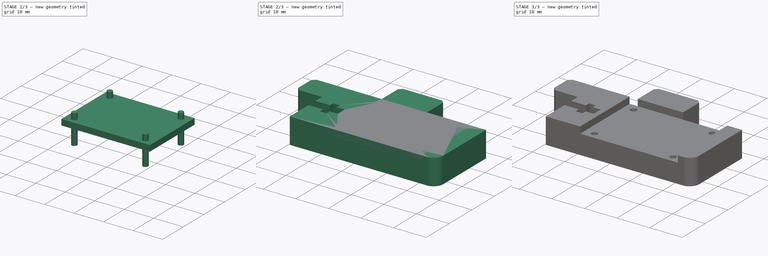
[diagram: build sequence overview — one tinted view per stage of 3, left to right]
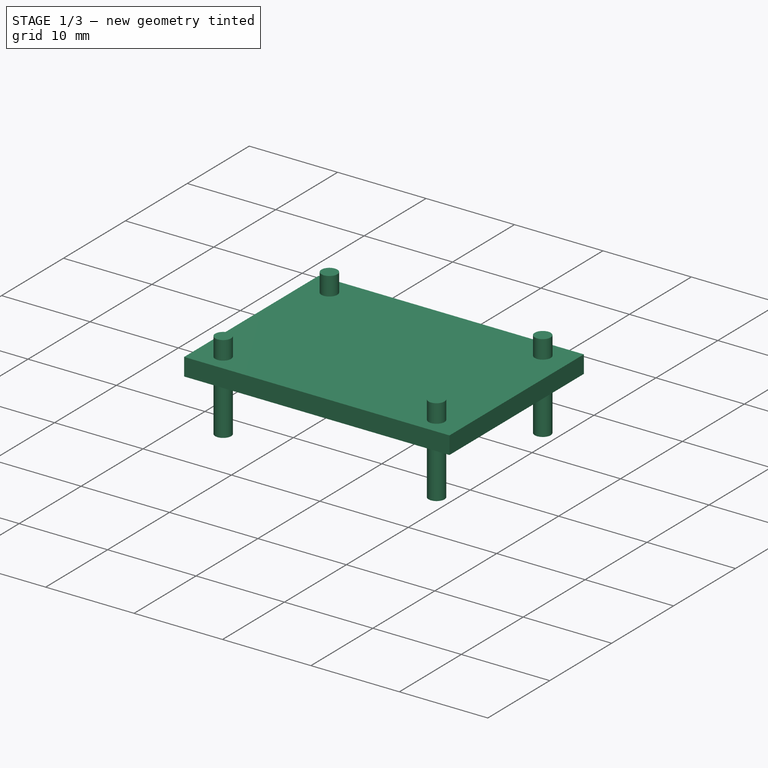
[diagram: stage 1 of 3 — iso view after this stage's code; geometry added in this stage tinted green]
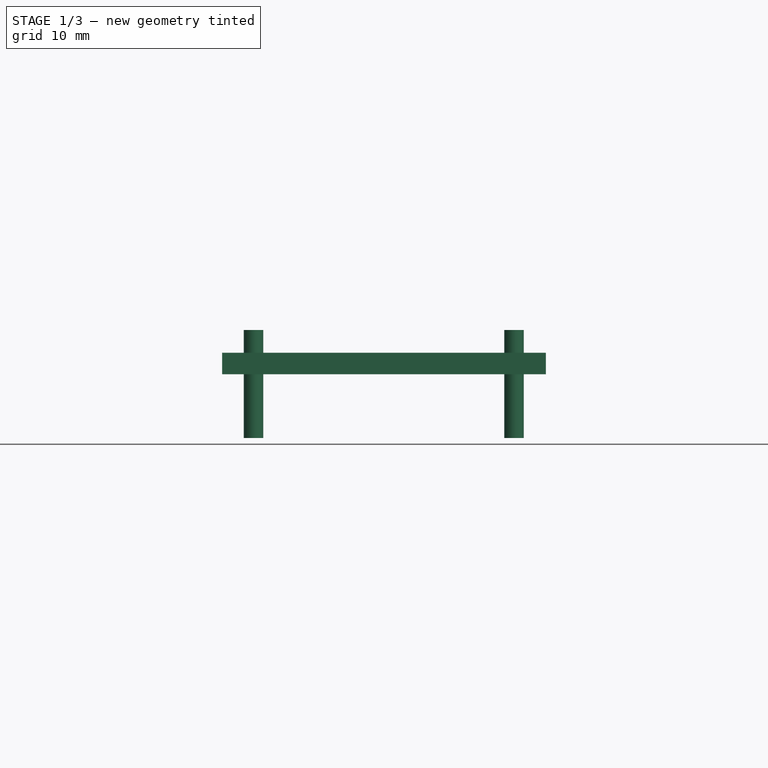
[diagram: stage 1 of 3 — front view after this stage's code; geometry added in this stage tinted green]
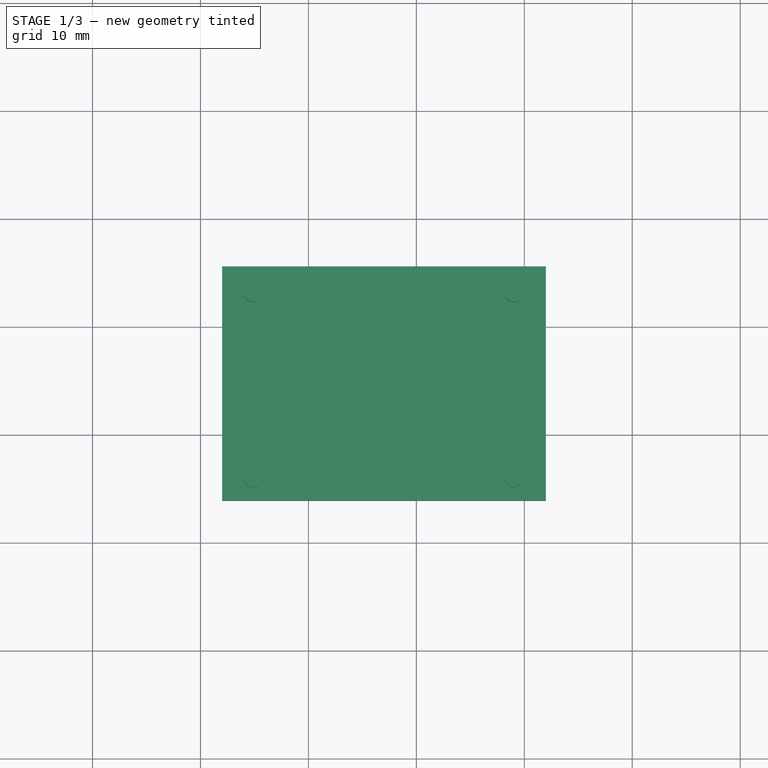
[diagram: stage 1 of 3 — top view after this stage's code; geometry added in this stage tinted green]
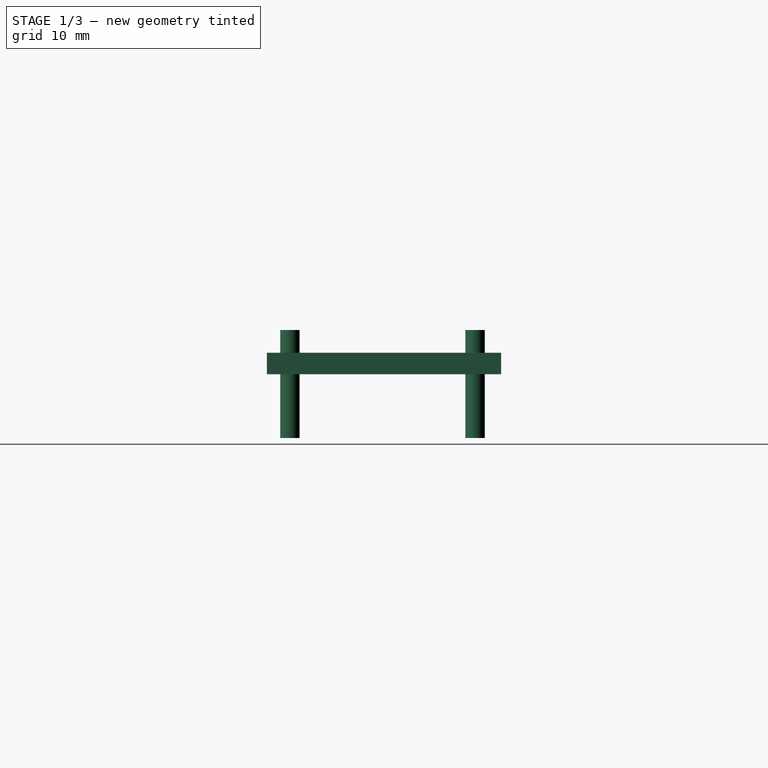
[diagram: stage 1 of 3 — right view after this stage's code; geometry added in this stage tinted green]
FCSTD DOCUMENT  (FreeCAD 0.15R4671 (Git))
Label: i3B1-31 Bracket With IR differential probe holder
License: All rights reserved
LicenseURL: http://en.wikipedia.org/wiki/All_rights_reserved
objects: Sketcher::SketchObject×5, PartDesign::Pad×3, Part::Cut×2, PartDesign::Pocket×1
note: 15 computed .brp shape members not serialized (recipe doc carries the construction recipe); baked Part::Feature solids carry a one-line shape summary decoded from their .brp

FEATURE [Sketcher::SketchObject] Sketch001  label="Holes for PCB"
  sketch-geometry (16):
    g0: LineSegment [constr] StartX=-8 StartY=5.5 StartZ=0 EndX=22 EndY=5.5 EndZ=0
    g1: LineSegment [constr] StartX=22 StartY=5.5 StartZ=0 EndX=22 EndY=-17.5 EndZ=0
    g2: LineSegment [constr] StartX=22 StartY=-17.5 StartZ=0 EndX=-8 EndY=-17.5 EndZ=0
    g3: LineSegment [constr] StartX=-8 StartY=-17.5 StartZ=0 EndX=-8 EndY=5.5 EndZ=0
    g4: Circle CenterX=-5.09 CenterY=3.09 CenterZ=0 NormalX=0 NormalY=0 NormalZ=1 Radius=0.9
    g5: Circle CenterX=19.04 CenterY=3.09 CenterZ=0 NormalX=0 NormalY=0 NormalZ=1 Radius=0.9
    g6: Circle CenterX=19.04 CenterY=-14.06 CenterZ=0 NormalX=0 NormalY=0 NormalZ=1 Radius=0.9
    g7: Circle CenterX=-5.09 CenterY=-14.06 CenterZ=0 NormalX=0 NormalY=0 NormalZ=1 Radius=0.9
    g8: LineSegment [constr] StartX=-5.09 StartY=3.09 StartZ=0 EndX=19.04 EndY=3.09 EndZ=0
    g9: LineSegment [constr] StartX=19.04 StartY=3.09 StartZ=0 EndX=19.04 EndY=-14.06 EndZ=0
    g10: LineSegment [constr] StartX=19.04 StartY=-14.06 StartZ=0 EndX=-5.09 EndY=-14.06 EndZ=0
    g11: LineSegment [constr] StartX=-5.09 StartY=-14.06 StartZ=0 EndX=-5.09 EndY=3.09 EndZ=0
    g12: LineSegment [constr] StartX=-7 StartY=5 StartZ=0 EndX=21.15 EndY=5 EndZ=0
    g13: LineSegment [constr] StartX=21.15 StartY=5 StartZ=0 EndX=21.15 EndY=-16.1 EndZ=0
    g14: LineSegment [constr] StartX=21.15 StartY=-16.1 StartZ=0 EndX=-7 EndY=-16.1 EndZ=0
    g15: LineSegment [constr] StartX=-7 StartY=-16.1 StartZ=0 EndX=-7 EndY=5 EndZ=0
  constraints (44):
    c: Coincident(g0,g1)
    c: Coincident(g1,g2)
    c: Coincident(g2,g3)
    c: Coincident(g3,g0)
    c: Horizontal(g0)
    c: Horizontal(g2)
    c: Vertical(g1)
    c: Vertical(g3)
    c: DistanceX(g0) = 30
    c: DistanceY(g1) = -23
    c: DistanceX(g-1,g0) = -8
    c: DistanceY(g-1,g0) = 5.5
    c: Radius(g4) = 0.9
    c: DistanceX(g4,g0) = -2.91
    c: DistanceY(g4,g0) = 2.41
    c: Equal(g4,g5)
    c: Equal(g4,g6)
    c: Equal(g4,g7)
    c: Coincident(g8,g9)
    c: Coincident(g9,g10)
    c: Coincident(g10,g11)
    c: Coincident(g11,g8)
    c: Horizontal(g8)
    c: Horizontal(g10)
    c: Vertical(g9)
    c: Vertical(g11)
    c: Coincident(g8,g4)
    c: DistanceX(g8) = 24.13
    c: DistanceY(g11) = 17.15
    c: Coincident(g7,g10)
    c: Coincident(g5,g8)
    c: Coincident(g6,g9)
    c: Coincident(g12,g13)
    c: Coincident(g13,g14)
    c: Coincident(g14,g15)
    c: Coincident(g15,g12)
    c: Horizontal(g12)
    c: Horizontal(g14)
    c: Vertical(g13)
    c: Vertical(g15)
    c: DistanceX(g12) = 28.15
    c: DistanceY(g15) = 21.1
    c: DistanceY(g12,g0) = 0.5
    c: DistanceX(g12,g0) = -1
FEATURE [Sketcher::SketchObject] Sketch002  label="Pocket for PCB Placement"
  Placement = pos=(0,0,7.9) rot=(0,0,1;0rad)
  sketch-geometry (4):
    g0: LineSegment StartX=-8 StartY=5.5 StartZ=0 EndX=22 EndY=5.5 EndZ=0
    g1: LineSegment StartX=22 StartY=5.5 StartZ=0 EndX=22 EndY=-16.2 EndZ=0
    g2: LineSegment StartX=-8 StartY=-16.2 StartZ=0 EndX=-8 EndY=5.5 EndZ=0
    g3: LineSegment StartX=22 StartY=-16.2 StartZ=0 EndX=-8 EndY=-16.2 EndZ=0
  constraints (12):
    c: Coincident(g0,g1)
    c: Coincident(g2,g0)
    c: Horizontal(g0)
    c: Vertical(g1)
    c: Vertical(g2)
    c: DistanceX(g0) = 30
    c: DistanceX(g-1,g0) = -8
    c: DistanceY(g-1,g0) = 5.5
    c: Horizontal(g3)
    c: Coincident(g3,g2)
    c: Coincident(g3,g1)
    c: DistanceY(g0,g2) = -21.7
FEATURE [Sketcher::SketchObject] Sketch004  label="Original Contour"
  sketch-geometry (42):
    g0: LineSegment [constr] StartX=0 StartY=0 StartZ=0 EndX=-5.5 EndY=0 EndZ=0
    g1: LineSegment [constr] StartX=-5.5 StartY=0 StartZ=0 EndX=-5.5 EndY=5.5 EndZ=0
    g2: LineSegment StartX=-5.5 StartY=5.5 StartZ=0 EndX=-5.5 EndY=12.56 EndZ=0
    g3: LineSegment StartX=-5.5 StartY=12.56 StartZ=0 EndX=-4.56 EndY=13.5 EndZ=0
    g4: LineSegment StartX=-4.56 StartY=13.5 StartZ=0 EndX=7.44 EndY=13.5 EndZ=0
    g5: LineSegment StartX=7.44 StartY=13.5 StartZ=0 EndX=8.38 EndY=12.56 EndZ=0
    g6: LineSegment StartX=8.38 StartY=12.56 StartZ=0 EndX=8.38 EndY=5.5 EndZ=0
    g7: LineSegment StartX=8.38 StartY=5.5 StartZ=0 EndX=15 EndY=5.5 EndZ=0
    g8: LineSegment StartX=15 StartY=5.5 StartZ=0 EndX=15 EndY=1 EndZ=0
    g9: LineSegment StartX=15 StartY=1 StartZ=0 EndX=13.6 EndY=1 EndZ=0
    g10: LineSegment StartX=13.6 StartY=1 StartZ=0 EndX=13.6 EndY=-1 EndZ=0
    g11: LineSegment StartX=13.6 StartY=-1 StartZ=0 EndX=15 EndY=-1 EndZ=0
    g12: LineSegment StartX=15 StartY=-1 StartZ=0 EndX=15 EndY=-3.5 EndZ=0
    g13: LineSegment StartX=15 StartY=-3.5 StartZ=0 EndX=18 EndY=-3.5 EndZ=0
    g14: LineSegment StartX=18 StartY=-3.5 StartZ=0 EndX=18 EndY=-1 EndZ=0
    g15: LineSegment StartX=18 StartY=-1 StartZ=0 EndX=19.4 EndY=-1 EndZ=0
    g16: LineSegment StartX=19.4 StartY=-1 StartZ=0 EndX=19.4 EndY=1 EndZ=0
    g17: LineSegment StartX=19.4 StartY=1 StartZ=0 EndX=18 EndY=1 EndZ=0
    g18: LineSegment StartX=18 StartY=1 StartZ=0 EndX=18 EndY=5.5 EndZ=0
    g19: LineSegment StartX=18 StartY=5.5 StartZ=0 EndX=26.5 EndY=5.5 EndZ=0
    g20: LineSegment StartX=26.5 StartY=5.5 StartZ=0 EndX=26.5 EndY=-4 EndZ=0
    g21: LineSegment StartX=24 StartY=-7 StartZ=0 EndX=-6.5 EndY=-13 EndZ=0
    g22: LineSegment StartX=-6.5 StartY=-13 StartZ=0 EndX=-18.5 EndY=-13 EndZ=0
    g23: LineSegment StartX=-18.5 StartY=-13 StartZ=0 EndX=-18.5 EndY=-8 EndZ=0
    g24: LineSegment StartX=-18.5 StartY=-8 StartZ=0 EndX=-14 EndY=-8 EndZ=0
    g25: LineSegment StartX=-14 StartY=-8 StartZ=0 EndX=-14 EndY=-9.4 EndZ=0
    g26: LineSegment StartX=-14 StartY=-9.4 StartZ=0 EndX=-12 EndY=-9.4 EndZ=0
    g27: LineSegment StartX=-12 StartY=-9.4 StartZ=0 EndX=-12 EndY=-8 EndZ=0
    g28: LineSegment StartX=-12 StartY=-8 StartZ=0 EndX=-9.5 EndY=-8 EndZ=0
    g29: LineSegment StartX=-9.5 StartY=-8 StartZ=0 EndX=-9.5 EndY=-5 EndZ=0
    g30: LineSegment StartX=-9.5 StartY=-5 StartZ=0 EndX=-12 EndY=-5 EndZ=0
    g31: LineSegment StartX=-12 StartY=-5 StartZ=0 EndX=-12 EndY=-3.6 EndZ=0
    g32: LineSegment StartX=-12 StartY=-3.6 StartZ=0 EndX=-14 EndY=-3.6 EndZ=0
    g33: LineSegment StartX=-14 StartY=-3.6 StartZ=0 EndX=-14 EndY=-5 EndZ=0
    g34: LineSegment StartX=-14 StartY=-5 StartZ=0 EndX=-18.5 EndY=-5 EndZ=0
    g35: LineSegment StartX=-18.5 StartY=-5 StartZ=0 EndX=-18.5 EndY=-2.1 EndZ=0
    g36: LineSegment StartX=-18.5 StartY=-2.1 StartZ=0 EndX=-25.5 EndY=-2.1 EndZ=0
    g37: LineSegment StartX=-25.5 StartY=-2.1 StartZ=0 EndX=-26.5 EndY=-1.1 EndZ=0
    g38: LineSegment StartX=-26.5 StartY=-1.1 StartZ=0 EndX=-26.5 EndY=4.5 EndZ=0
    g39: LineSegment StartX=-26.5 StartY=4.5 StartZ=0 EndX=-25.5 EndY=5.5 EndZ=0
    g40: LineSegment StartX=-25.5 StartY=5.5 StartZ=0 EndX=-5.5 EndY=5.5 EndZ=0
    g41: ArcOfCircle CenterX=23.45 CenterY=-4 CenterZ=0 NormalX=0 NormalY=0 NormalZ=1 Radius=3.05 StartAngle=4.89371 EndAngle=6.28319
  constraints (125):
    c: Coincident(g-1,g0)
    c: Horizontal(g0)
    c: Coincident(g0,g1)
    c: Vertical(g1)
    c: DistanceY(g1) = 5.5
    c: DistanceX(g0) = -5.5
    c: Coincident(g1,g2)
    c: Vertical(g2)
    c: Coincident(g2,g3)
    c: Coincident(g3,g4)
    c: Horizontal(g4)
    c: Coincident(g4,g5)
    c: Coincident(g5,g6)
    c: Vertical(g6)
    c: Coincident(g6,g7)
    c: Horizontal(g7)
    c: Coincident(g7,g8)
    c: Vertical(g8)
    c: Coincident(g8,g9)
    c: Horizontal(g9)
    c: Coincident(g9,g10)
    c: Vertical(g10)
    c: Coincident(g10,g11)
    c: Horizontal(g11)
    c: Coincident(g11,g12)
    c: Vertical(g12)
    c: Coincident(g12,g13)
    c: Horizontal(g13)
    c: Coincident(g13,g14)
    c: Vertical(g14)
    c: Coincident(g14,g15)
    c: Horizontal(g15)
    c: Coincident(g15,g16)
    c: Vertical(g16)
    c: Coincident(g16,g17)
    c: Horizontal(g17)
    c: Coincident(g17,g18)
    c: Vertical(g18)
    c: Coincident(g18,g19)
    c: Horizontal(g19)
    c: Vertical(g20)
    c: Coincident(g21,g22)
    c: Horizontal(g22)
    c: Vertical(g23)
    c: Coincident(g23,g24)
    c: Horizontal(g24)
    c: Coincident(g24,g25)
    c: Vertical(g25)
    c: Coincident(g25,g26)
    c: Horizontal(g26)
    c: Coincident(g26,g27)
    c: Vertical(g27)
    c: Coincident(g27,g28)
    c: Horizontal(g28)
    c: Coincident(g28,g29)
    c: Vertical(g29)
    c: Coincident(g29,g30)
    c: Horizontal(g30)
    c: Coincident(g30,g31)
    c: Vertical(g31)
    c: Coincident(g31,g32)
    c: Horizontal(g32)
    c: Coincident(g32,g33)
    c: Vertical(g33)
    c: Coincident(g33,g34)
    c: Horizontal(g34)
    c: Coincident(g34,g35)
    c: Vertical(g35)
    c: Coincident(g35,g36)
    c: Horizontal(g36)
    c: Coincident(g36,g37)
    c: Coincident(g37,g38)
    c: Vertical(g38)
    c: Coincident(g38,g39)
    c: Coincident(g39,g40)
    c: Coincident(g40,g2)
    c: Horizontal(g40)
    c: DistanceX(g1,g6) = 13.88
    c: DistanceY(g1,g3) = 8
    c: Angle(g2,g3) = 2.35619
    c: Angle(g5,g6) = 2.35619
    c: DistanceX(g3,g4) = 12
    c: DistanceX(g2,g3) = 0.94
    c: Angle(g39,g40) = 2.35619
    c: Angle(g36,g37) = 2.35619
    c: DistanceY(g39,g36) = -7.6
    c: DistanceY(g37,g38) = 5.6
    c: DistanceY(g39,g38) = -1
    c: DistanceX(g38,g1) = 21
    c: DistanceX(g1,g35) = -13
    c: Coincident(g22,g23)
    c: Coincident(g20,g19)
    c: DistanceX(g38,g19) = 53
    c: DistanceY(g1,g21) = -18.5
    c: DistanceX(g35,g22) = 0
    c: DistanceY(g6,g1) = 0
    c: DistanceY(g7,g18) = 0
    c: Tangent(g20,g41) = 1.5708
    c: Coincident(g41,g21)
    c: DistanceY(g21,g19) = 12.5
    c: DistanceY(g20,g19) = 9.5
    c: DistanceX(g21,g20) = 2.5
    c: DistanceX(g21,g22) = -12
    c: DistanceY(g34,g23) = -3
    c: DistanceY(g28,g29) = 3
    c: DistanceY(g33,g30) = 0
    c: DistanceX(g33,g24) = 0
    c: DistanceX(g32,g31) = 2
    c: DistanceX(g25,g26) = 2
    c: DistanceY(g22,g23) = 5
    c: DistanceY(g26,g31) = 5.8
    c: DistanceY(g25,g24) = 1.4
    c: DistanceX(g29,g35) = -9
    c: DistanceX(g33,g34) = -4.5
    c: DistanceY(g10,g9) = 2
    c: DistanceY(g15,g16) = 2
    c: DistanceY(g8,g17) = 0
    c: DistanceX(g12,g13) = 3
    c: DistanceX(g7,g18) = 3
    c: DistanceX(g8,g11) = 0
    c: DistanceX(g10,g15) = 5.8
    c: DistanceX(g12,g10) = -1.4
    c: DistanceX(g18,g19) = 8.5
    c: DistanceY(g12,g7) = 9
    c: DistanceY(g17,g18) = 4.5
FEATURE [PartDesign::Pad] Pad001  label="Holes for PCB Puncher"
  Length = 10
  Length2 = 100
  Sketch = -> Sketch001
  Type = 0
FEATURE [PartDesign::Pad] Pad002  label="PCB Placement Puncher"
  Length = 2
  Length2 = 100
  Placement = pos=(0,0,7.9) rot=(0,0,1;0rad)
  Reversed = true
  Sketch = -> Sketch002
  Type = 0
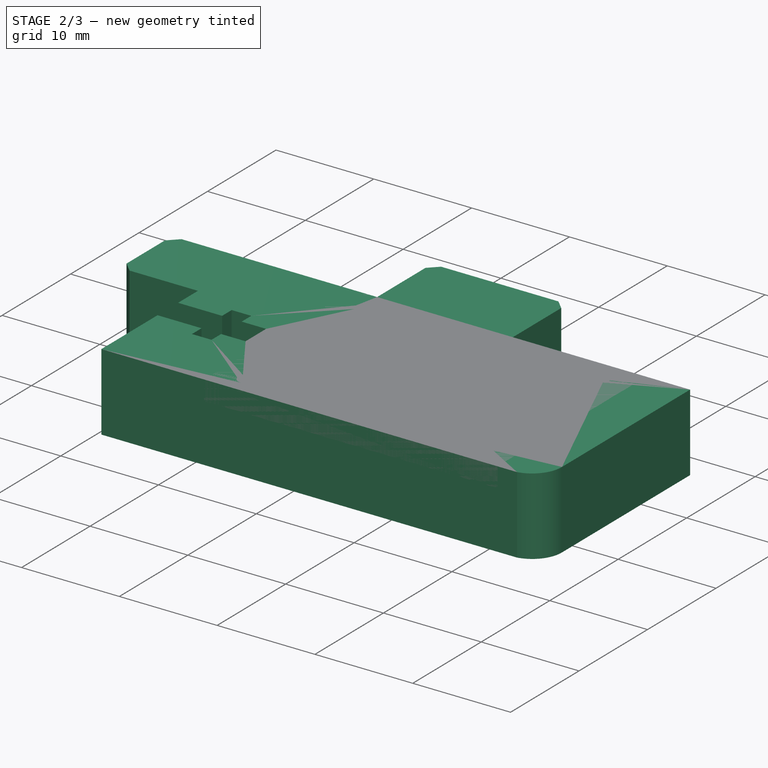
[diagram: stage 2 of 3 — iso view after this stage's code; geometry added in this stage tinted green]
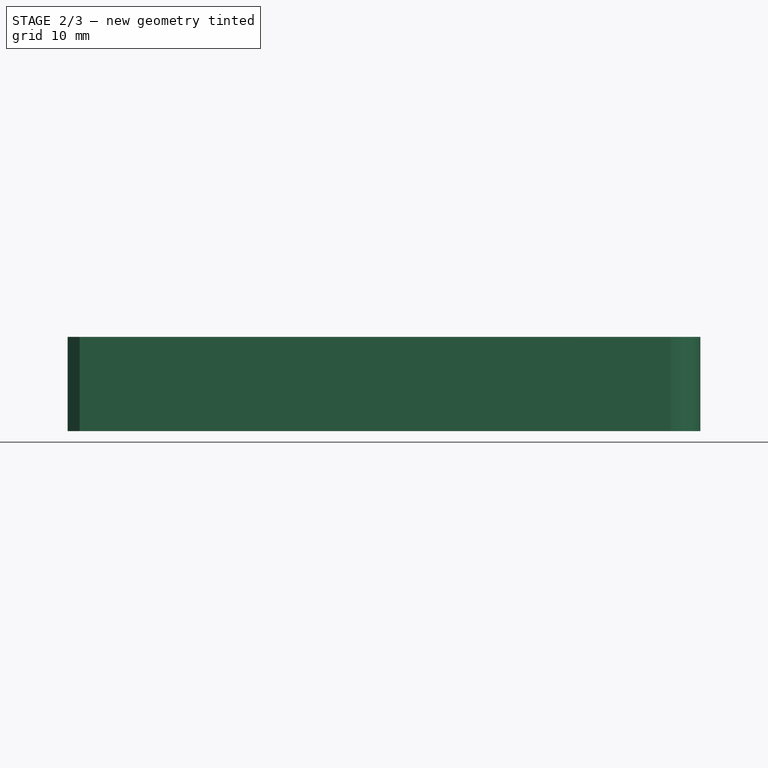
[diagram: stage 2 of 3 — front view after this stage's code; geometry added in this stage tinted green]
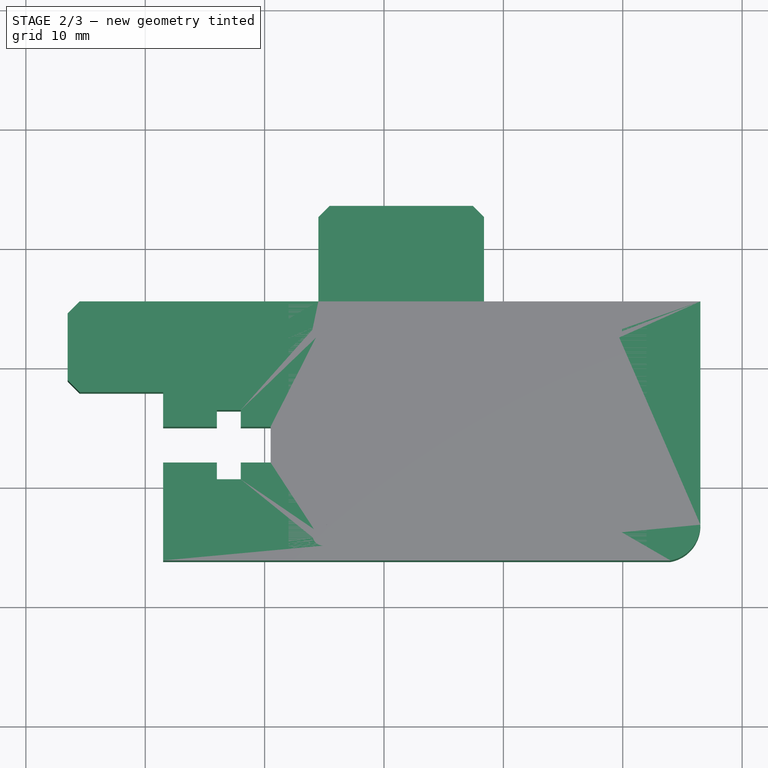
[diagram: stage 2 of 3 — top view after this stage's code; geometry added in this stage tinted green]
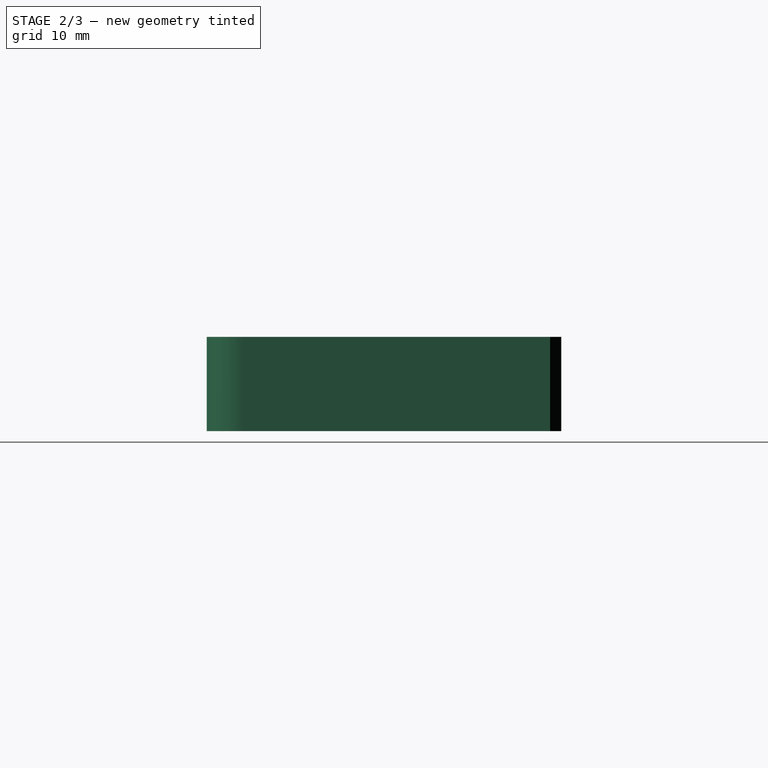
[diagram: stage 2 of 3 — right view after this stage's code; geometry added in this stage tinted green]
FEATURE [Sketcher::SketchObject] Sketch  label="Modified Contour"
  sketch-geometry (29):
    g0: LineSegment [constr] StartX=0 StartY=0 StartZ=0 EndX=-5.5 EndY=0 EndZ=0
    g1: LineSegment [constr] StartX=-5.5 StartY=0 StartZ=0 EndX=-5.5 EndY=5.5 EndZ=0
    g2: LineSegment StartX=-5.5 StartY=5.5 StartZ=0 EndX=-5.5 EndY=12.56 EndZ=0
    g3: LineSegment StartX=-5.5 StartY=12.56 StartZ=0 EndX=-4.56 EndY=13.5 EndZ=0
    g4: LineSegment StartX=-4.56 StartY=13.5 StartZ=0 EndX=7.44 EndY=13.5 EndZ=0
    g5: LineSegment StartX=7.44 StartY=13.5 StartZ=0 EndX=8.38 EndY=12.56 EndZ=0
    g6: LineSegment StartX=8.38 StartY=12.56 StartZ=0 EndX=8.38 EndY=5.5 EndZ=0
    g7: LineSegment StartX=8.38 StartY=5.5 StartZ=0 EndX=26.5 EndY=5.5 EndZ=0
    g8: LineSegment StartX=26.5 StartY=5.5 StartZ=0 EndX=26.5 EndY=-13.2049 EndZ=0
    g9: LineSegment StartX=24 StartY=-16.2 StartZ=0 EndX=-18.5 EndY=-16.2 EndZ=0
    g10: LineSegment StartX=-18.5 StartY=-16.2 StartZ=0 EndX=-18.5 EndY=-8 EndZ=0
    g11: LineSegment StartX=-18.5 StartY=-8 StartZ=0 EndX=-14 EndY=-8 EndZ=0
    g12: LineSegment StartX=-14 StartY=-8 StartZ=0 EndX=-14 EndY=-9.4 EndZ=0
    g13: LineSegment StartX=-14 StartY=-9.4 StartZ=0 EndX=-12 EndY=-9.4 EndZ=0
    g14: LineSegment StartX=-12 StartY=-9.4 StartZ=0 EndX=-12 EndY=-8 EndZ=0
    g15: LineSegment StartX=-12 StartY=-8 StartZ=0 EndX=-9.5 EndY=-8 EndZ=0
    g16: LineSegment StartX=-9.5 StartY=-8 StartZ=0 EndX=-9.5 EndY=-5 EndZ=0
    g17: LineSegment StartX=-9.5 StartY=-5 StartZ=0 EndX=-12 EndY=-5 EndZ=0
    g18: LineSegment StartX=-12 StartY=-5 StartZ=0 EndX=-12 EndY=-3.6 EndZ=0
    g19: LineSegment StartX=-12 StartY=-3.6 StartZ=0 EndX=-14 EndY=-3.6 EndZ=0
    g20: LineSegment StartX=-14 StartY=-3.6 StartZ=0 EndX=-14 EndY=-5 EndZ=0
    g21: LineSegment StartX=-14 StartY=-5 StartZ=0 EndX=-18.5 EndY=-5 EndZ=0
    g22: LineSegment StartX=-18.5 StartY=-5 StartZ=0 EndX=-18.5 EndY=-2.1 EndZ=0
    g23: LineSegment StartX=-18.5 StartY=-2.1 StartZ=0 EndX=-25.5 EndY=-2.1 EndZ=0
    g24: LineSegment StartX=-25.5 StartY=-2.1 StartZ=0 EndX=-26.5 EndY=-1.1 EndZ=0
    g25: LineSegment StartX=-26.5 StartY=-1.1 StartZ=0 EndX=-26.5 EndY=4.5 EndZ=0
    g26: LineSegment StartX=-26.5 StartY=4.5 StartZ=0 EndX=-25.5 EndY=5.5 EndZ=0
    g27: LineSegment StartX=-25.5 StartY=5.5 StartZ=0 EndX=-5.5 EndY=5.5 EndZ=0
    g28: ArcOfCircle CenterX=23.4559 CenterY=-13.2049 CenterZ=0 NormalX=0 NormalY=0 NormalZ=1 Radius=3.04411 StartAngle=4.8921 EndAngle=6.28319
  constraints (85):
    c: Coincident(g-1,g0)
    c: Horizontal(g0)
    c: Coincident(g0,g1)
    c: Vertical(g1)
    c: DistanceY(g1) = 5.5
    c: DistanceX(g0) = -5.5
    c: Coincident(g1,g2)
    c: Vertical(g2)
    c: Coincident(g2,g3)
    c: Coincident(g3,g4)
    c: Horizontal(g4)
    c: Coincident(g4,g5)
    c: Coincident(g5,g6)
    c: Vertical(g6)
    c: Horizontal(g7)
    c: Vertical(g8)
    c: Horizontal(g9)
    c: Vertical(g10)
    c: Coincident(g10,g11)
    c: Horizontal(g11)
    c: Coincident(g11,g12)
    c: Vertical(g12)
    c: Coincident(g12,g13)
    c: Horizontal(g13)
    c: Coincident(g13,g14)
    c: Vertical(g14)
    c: Coincident(g14,g15)
    c: Horizontal(g15)
    c: Coincident(g15,g16)
    c: Vertical(g16)
    c: Coincident(g16,g17)
    c: Horizontal(g17)
    c: Coincident(g17,g18)
    c: Vertical(g18)
    c: Coincident(g18,g19)
    c: Horizontal(g19)
    c: Coincident(g19,g20)
    c: Vertical(g20)
    c: Coincident(g20,g21)
    c: Horizontal(g21)
    c: Coincident(g21,g22)
    c: Vertical(g22)
    c: Coincident(g22,g23)
    c: Horizontal(g23)
    c: Coincident(g23,g24)
    c: Coincident(g24,g25)
    c: Vertical(g25)
    c: Coincident(g25,g26)
    c: Coincident(g26,g27)
    c: Coincident(g27,g2)
    c: Horizontal(g27)
    c: DistanceX(g1,g6) = 13.88
    c: DistanceY(g1,g3) = 8
    c: Angle(g2,g3) = 2.35619
    c: Angle(g5,g6) = 2.35619
    c: DistanceX(g3,g4) = 12
    c: DistanceX(g2,g3) = 0.94
    c: Angle(g26,g27) = 2.35619
    c: Angle(g23,g24) = 2.35619
    c: DistanceY(g26,g23) = -7.6
    c: DistanceY(g24,g25) = 5.6
    c: DistanceY(g26,g25) = -1
    c: DistanceX(g25,g1) = 21
    c: DistanceX(g1,g22) = -13
    c: Coincident(g9,g10)
    c: Coincident(g8,g7)
    c: DistanceX(g25,g7) = 53
    c: DistanceX(g22,g9) = 0
    c: DistanceY(g6,g1) = 0
    c: Tangent(g8,g28) = 1.5708
    c: DistanceX(g28,g8) = 2.5
    c: DistanceY(g21,g10) = -3
    c: DistanceY(g15,g16) = 3
    c: DistanceY(g20,g17) = 0
    c: DistanceX(g20,g11) = 0
    c: DistanceX(g19,g18) = 2
    c: DistanceX(g12,g13) = 2
    c: DistanceY(g13,g18) = 5.8
    c: DistanceY(g12,g11) = 1.4
    c: DistanceX(g16,g22) = -9
    c: DistanceX(g20,g21) = -4.5
    c: Coincident(g7,g6)
    c: DistanceY(g21,g22) = 2.9
    c: DistanceY(g1,g9) = -21.7
    c: Coincident(g28,g9)
FEATURE [PartDesign::Pad] Pad  label="i3B1-31 Modified"
  Length = 7.9
  Length2 = 100
  Sketch = -> Sketch
  Type = 0
FEATURE [Part::Cut] Cut  label="Cut for Holes"
  Base = -> Pad
  Tool = -> Pad001
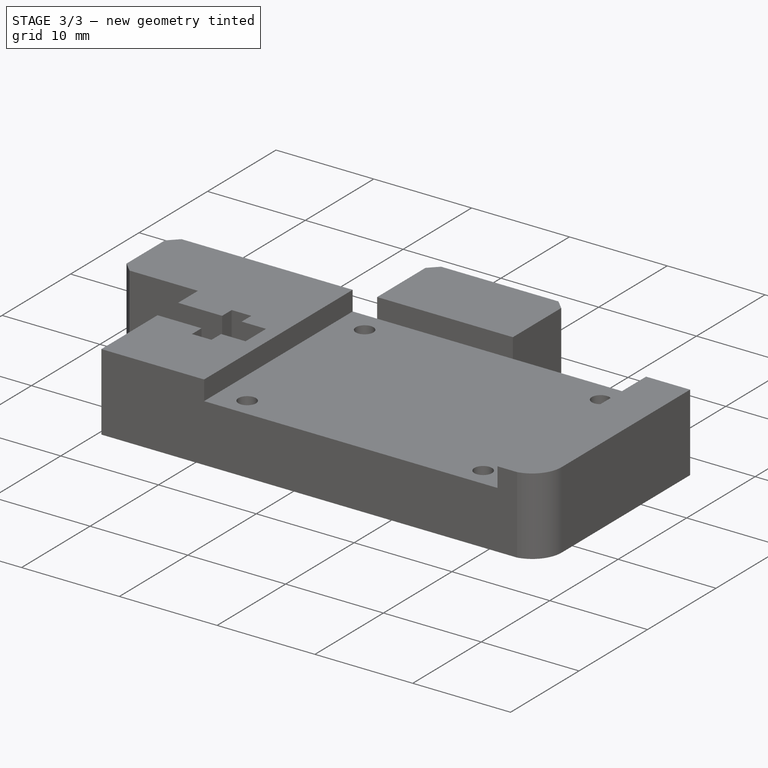
[diagram: stage 3 of 3 — iso view after this stage's code; geometry added in this stage tinted green]
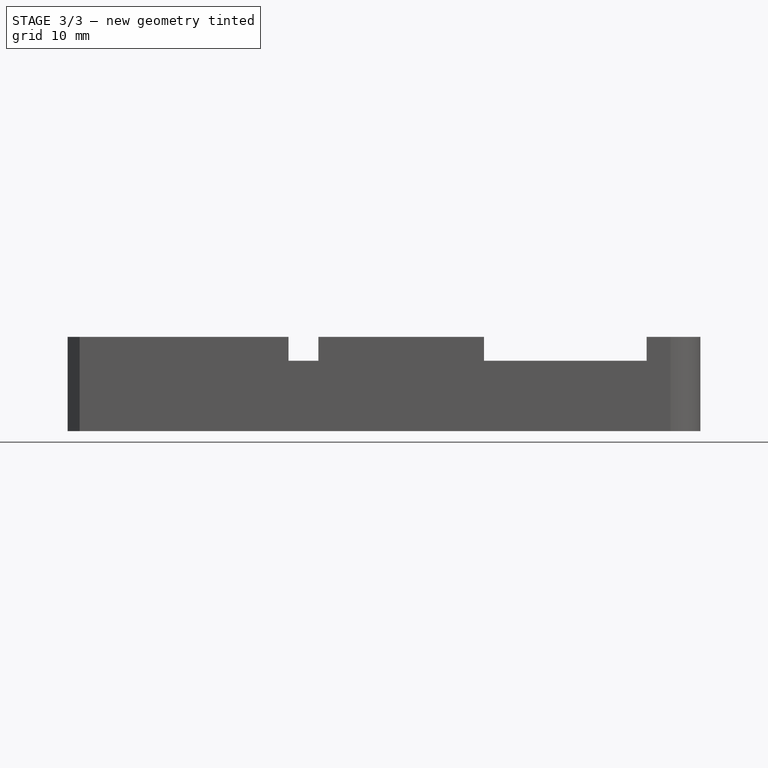
[diagram: stage 3 of 3 — front view after this stage's code; geometry added in this stage tinted green]
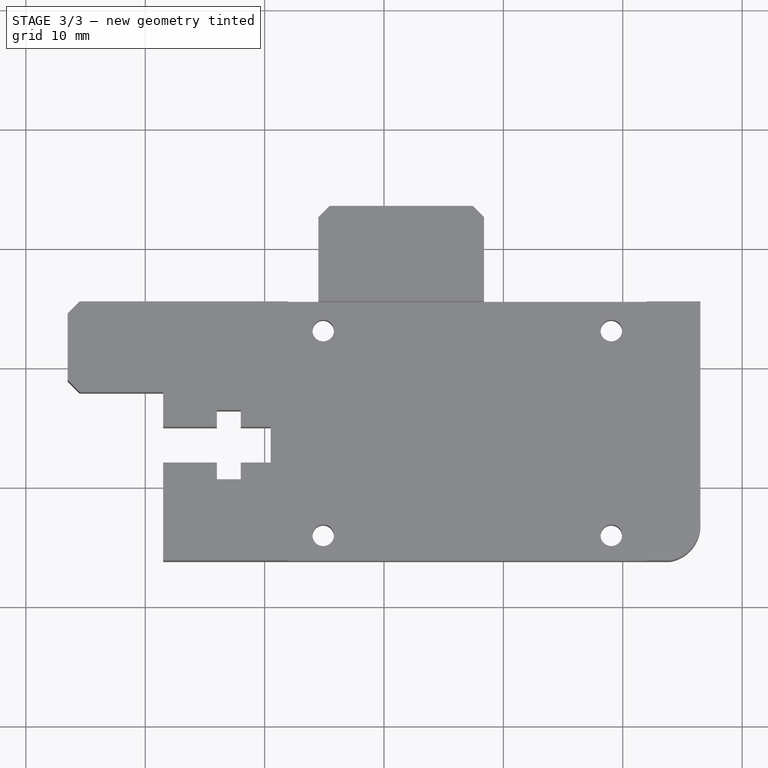
[diagram: stage 3 of 3 — top view after this stage's code; geometry added in this stage tinted green]
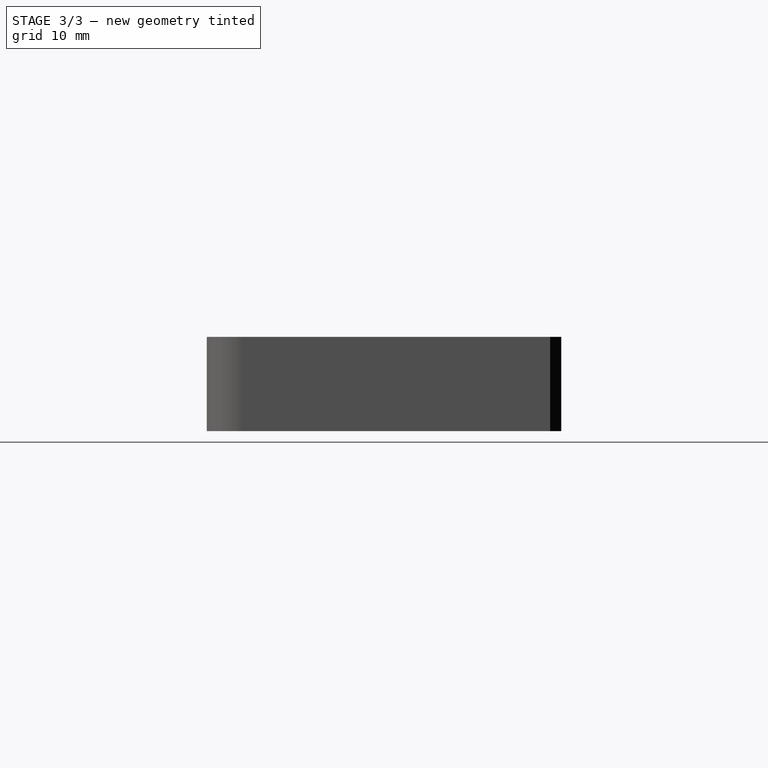
[diagram: stage 3 of 3 — right view after this stage's code; geometry added in this stage tinted green]
FEATURE [Part::Cut] Cut001  label="Block without Upper Hole"
  Base = -> Cut
  Tool = -> Pad002
FEATURE [Sketcher::SketchObject] Sketch005  label="Upper Hole Position"
  Placement = pos=(0,5.5,0) rot=(0,0.707107,0.707107;3.14159rad)
  Support = -> Cut001 [Face12]
  sketch-geometry (5):
    g0: LineSegment [constr] StartX=0 StartY=0 StartZ=0 EndX=-16.5 EndY=0 EndZ=0
    g1: LineSegment [constr] StartX=-16.5 StartY=0 StartZ=0 EndX=-16.5 EndY=4 EndZ=0
    g2: LineSegment [constr] StartX=-16.5 StartY=4 StartZ=0 EndX=0 EndY=4 EndZ=0
    g3: LineSegment [constr] StartX=0 StartY=4 StartZ=0 EndX=0 EndY=0 EndZ=0
    g4: Circle CenterX=-16.5 CenterY=4 CenterZ=0 NormalX=0 NormalY=0 NormalZ=1 Radius=0.9
  constraints (13):
    c: Coincident(g0,g1)
    c: Coincident(g1,g2)
    c: Coincident(g2,g3)
    c: Coincident(g3,g0)
    c: Horizontal(g0)
    c: Horizontal(g2)
    c: Vertical(g1)
    c: Vertical(g3)
    c: Coincident(g0,g-1)
    c: DistanceX(g0) = -16.5
    c: DistanceY(g1) = 4
    c: Coincident(g4,g1)
    c: Radius(g4) = 0.9
FEATURE [PartDesign::Pocket] Pocket  label="I3B1-31 with IR probe PCB holder"
  Length = 12.5
  Sketch = -> Sketch005
  Type = 0
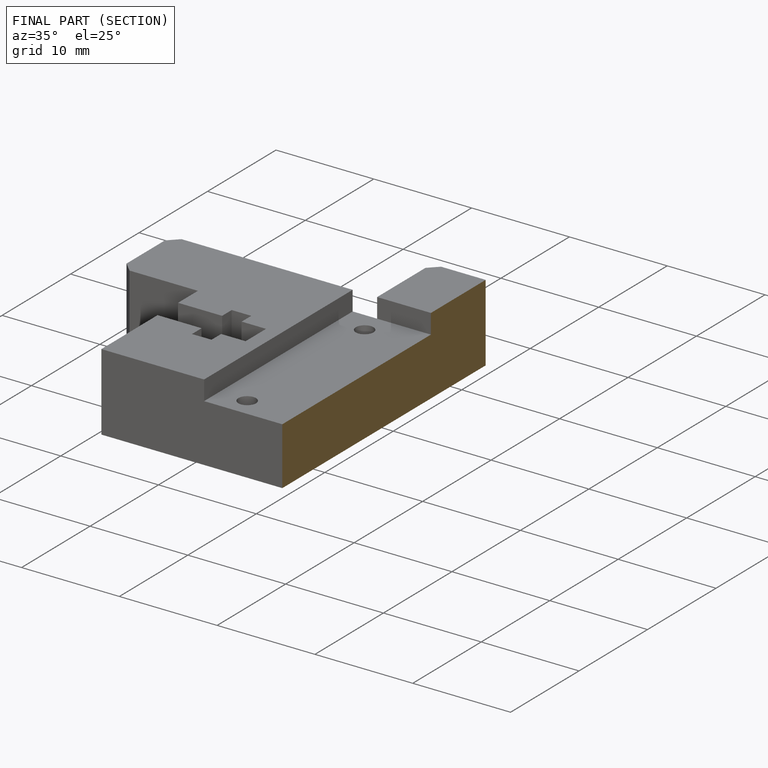
[diagram: finished part — half-section view (interior)]
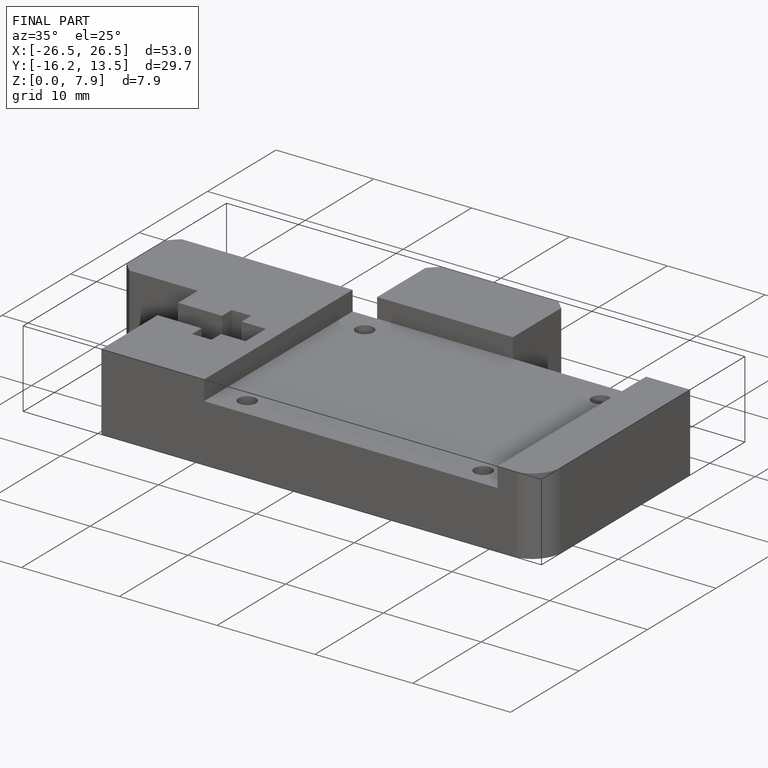
[diagram: finished part — iso view with bounding-box wireframe]
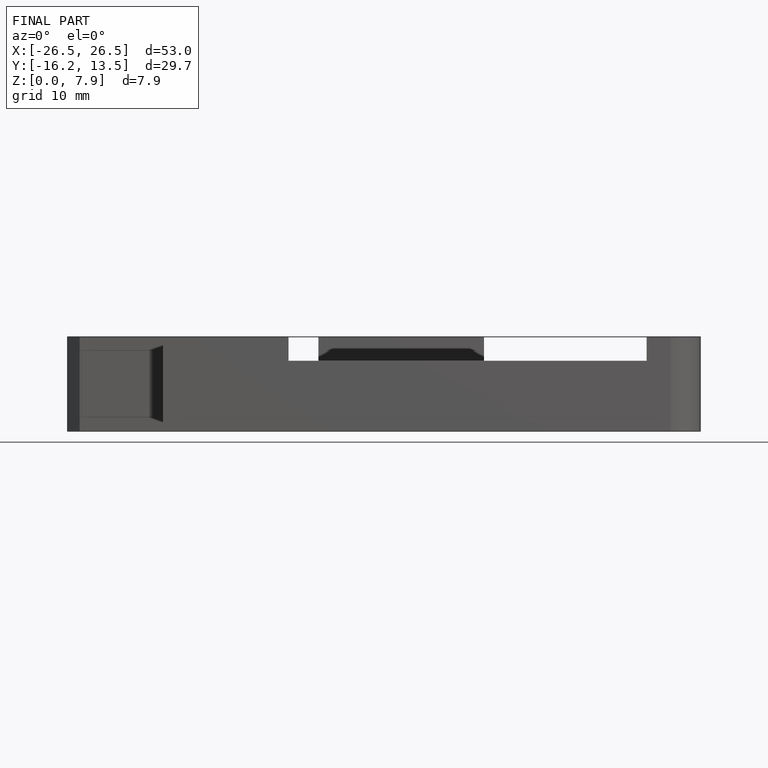
[diagram: finished part — front view with bounding-box wireframe]
